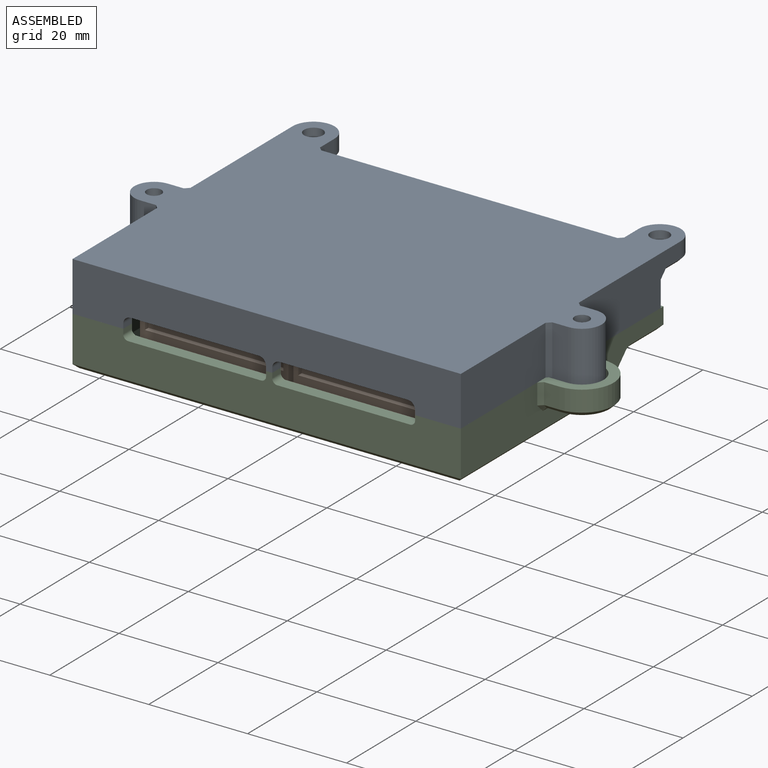
[diagram: assembled view]
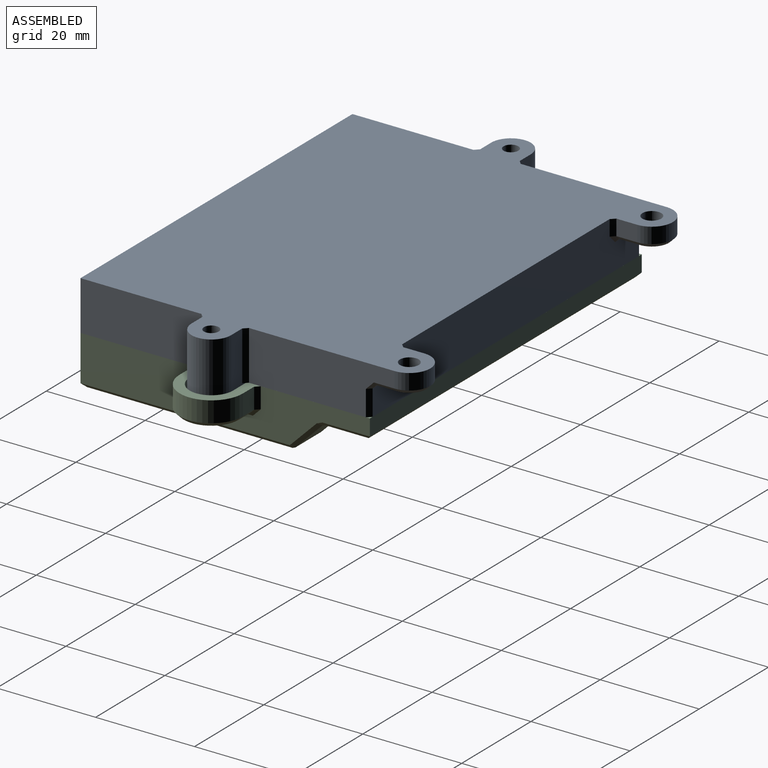
[diagram: assembled view, second angle]
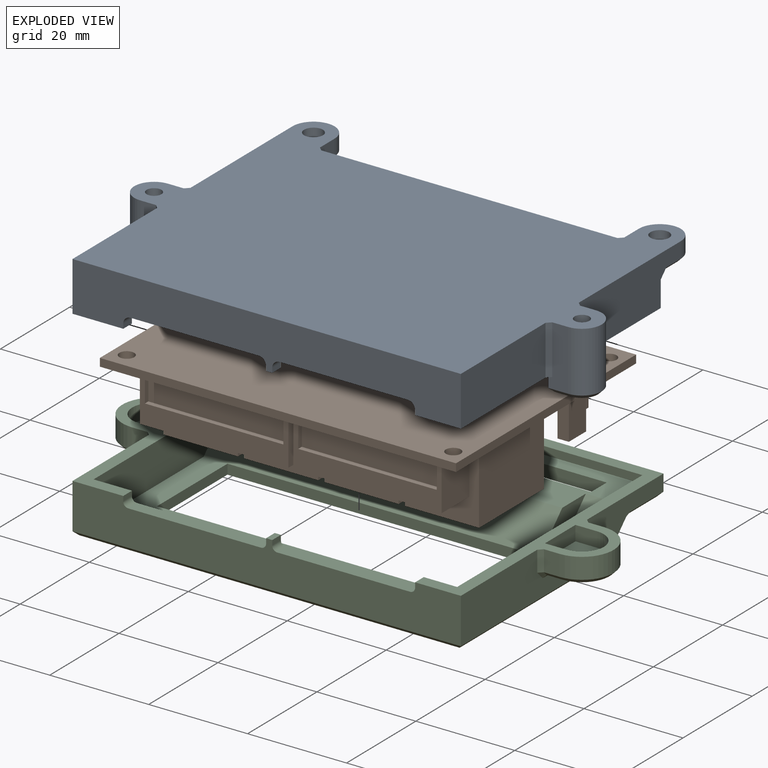
[diagram: exploded view]
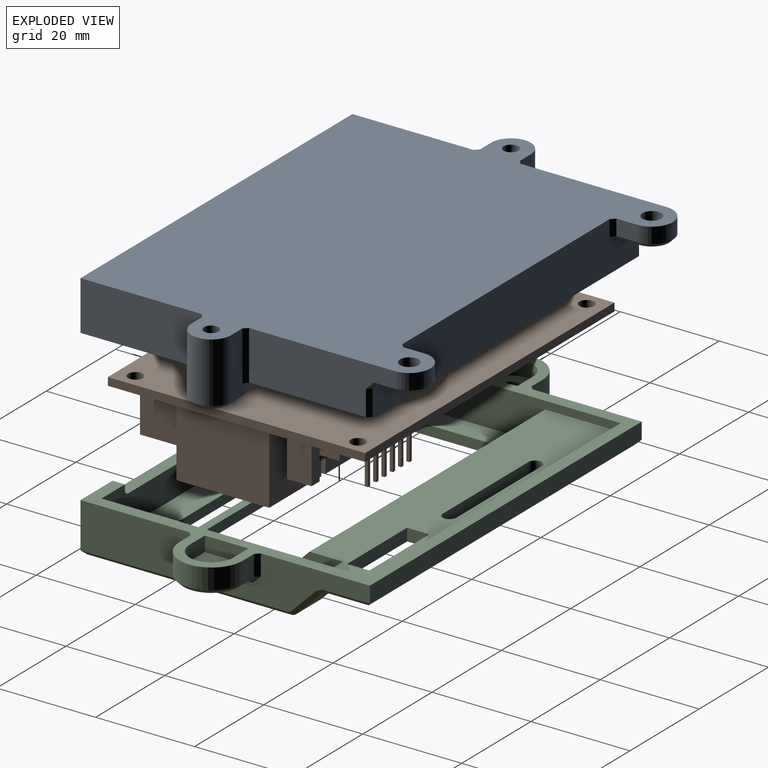
[diagram: exploded view, second angle]
ASSEMBLY  parts=3 mates=3
PART A: 88 faces, bbox 94.5x67.8x13 mm
  f0: plane 29.45x10mm, normal (1,0,0), area 256.3mm2, adj f5,f13,f44,f64,f66,f67,f87
  f1: plane 29.45x10mm, normal (-1,0,0), area 256.3mm2, adj f5,f13,f41,f68,f69,f71,f85
  f2: plane 76.9x10mm, normal (0,1,0), area 690mm2, adj f5,f13,f61,f63,f65,f67,f69,f73
  f3: plane 78.5x10mm, normal (0,-1,0), area 648.3mm2, adj f5,f6,f10,f11,f13,f30,f31,f32
  f4: plane 73.5x8mm, normal (0,1,0), area 451.3mm2, adj f5,f7,f8,f11,f12,f30,f31,f32
  f5: plane 80.1x58.5mm, normal (0,0,-1), area 513.1mm2, adj f0,f1,f2,f3,f4,f6,f7,f8
  f6: plane 24.45x10mm, normal (1,0,0), area 244.5mm2, adj f3,f5,f13,f86
  f7: plane 53.5x8mm, normal (-1,0,0), area 428mm2, adj f4,f5,f9,f12
  f8: plane 53.5x8mm, normal (1,0,0), area 428mm2, adj f4,f5,f9,f12
  f9: plane 73.5x8mm, normal (0,-1,0), area 588mm2, adj f5,f7,f8,f12
  f10: plane 24.45x10mm, normal (-1,0,0), area 244.5mm2, adj f3,f5,f13,f84
  f11: plane 2.5x1.25mm, normal (0,0,-1), area 3.1mm2, adj f3,f4,f34,f39
  f12: plane 73.5x53.5mm, normal (0,0,-1), area 3819.2mm2, adj f4,f7,f8,f9,f15,f19,f23,f27
  f13: plane 94.5x67.75mm, normal (0,0,1), area 4813.4mm2, adj f0,f1,f2,f3,f6,f10,f40,f41
  f14: cylinder r=1.5mm len=3mm, axis (0,0,1), area 28.3mm2, adj f16,f17
  f15: cylinder r=3mm len=6mm, axis (0,0,1), area 56.5mm2, adj f12,f16
  f16: plane 6x6mm, normal (0,0,-1), area 21.2mm2, adj f14,f15
  f17: plane 3x3mm, normal (0,0,-1), area 7.1mm2, adj f14
  f18: cylinder r=1.5mm len=3mm, axis (0,0,1), area 28.3mm2, adj f20,f21
  f19: cylinder r=3mm len=6mm, axis (0,0,1), area 56.5mm2, adj f12,f20
  f20: plane 6x6mm, normal (0,0,-1), area 21.2mm2, adj f18,f19
  f21: plane 3x3mm, normal (0,0,-1), area 7.1mm2, adj f18
  f22: cylinder r=1.5mm len=3mm, axis (0,0,1), area 28.3mm2, adj f24,f25
  f23: cylinder r=3mm len=6mm, axis (0,0,1), area 56.5mm2, adj f12,f24
  f24: plane 6x6mm, normal (0,0,-1), area 21.2mm2, adj f22,f23
  f25: plane 3x3mm, normal (0,0,-1), area 7.1mm2, adj f22
  f26: cylinder r=1.5mm len=3mm, axis (0,0,1), area 28.3mm2, adj f28,f29
  f27: cylinder r=3mm len=6mm, axis (0,0,1), area 56.5mm2, adj f12,f28
  f28: plane 6x6mm, normal (0,0,-1), area 21.2mm2, adj f26,f27
  f29: plane 3x3mm, normal (0,0,-1), area 7.1mm2, adj f26
  f30: cylinder r=1.5mm len=2.5mm, axis (0,-1,0), area 5.9mm2, adj f3,f4,f31,f34
  f31: plane 25.88x2.5mm, normal (0,0,-1), area 64.7mm2, adj f3,f4,f30,f32
  f32: cylinder r=1.5mm len=2.5mm, axis (0,-1,0), area 5.9mm2, adj f3,f4,f31,f33
  f33: plane 2.5x0.9mm, normal (1,0,0), area 2.2mm2, adj f3,f4,f5,f32
  f34: plane 2.5x0.9mm, normal (-1,0,0), area 2.2mm2, adj f3,f4,f11,f30
  f35: plane 2.5x0.9mm, normal (-1,0,0), area 2.2mm2, adj f3,f4,f5,f36
  f36: cylinder r=1.5mm len=2.5mm, axis (0,-1,0), area 5.9mm2, adj f3,f4,f35,f37
  f37: plane 25.88x2.5mm, normal (0,0,-1), area 64.7mm2, adj f3,f4,f36,f38
  f38: cylinder r=1.5mm len=2.5mm, axis (0,-1,0), area 5.9mm2, adj f3,f4,f37,f39
  f39: plane 2.5x0.9mm, normal (1,0,0), area 2.2mm2, adj f3,f4,f11,f38
  f40: plane 4.2x3.2mm, normal (1,0,0), area 13.4mm2, adj f13,f41,f72,f75
  f41: cylinder r=4.25mm len=8.5mm, axis (0,0,1), area 42.7mm2, adj f1,f13,f40,f70
  f42: cylinder r=1.9mm len=4mm, axis (0,0,1), area 47.8mm2, adj f13,f43
  f43: plane 7.65x6.9mm, normal (0,0,-1), area 36.3mm2, adj f42,f68,f70,f72,f73
  f44: cylinder r=4.25mm len=8.5mm, axis (0,0,1), area 42.7mm2, adj f0,f13,f45,f62
  f45: plane 4.2x3.2mm, normal (-1,0,0), area 13.4mm2, adj f13,f44,f60,f61
  f46: cylinder r=1.9mm len=4mm, axis (0,0,1), area 47.8mm2, adj f13,f47
  f47: plane 7.65x6.9mm, normal (0,0,-1), area 36.3mm2, adj f46,f60,f62,f64,f65
  f48: plane 8x2.2mm, normal (-1,0,0), area 17.6mm2, adj f5,f50,f52,f82
  f49: plane 6.4x6.4mm, normal (0,0,-1), area 29.5mm2, adj f53,f80,f81,f82,f83
  f50: plane 12.2x4mm, normal (0,-1,0), area 40.8mm2, adj f5,f13,f48,f51,f83,f86
  f51: cylinder r=4mm len=12.2mm, axis (0,0,1), area 153.3mm2, adj f13,f50,f52,f81
  f52: plane 12.2x4mm, normal (0,1,0), area 40.8mm2, adj f5,f13,f48,f51,f80,f87
  f53: cylinder r=1.5mm len=13mm, axis (0,0,1), area 122.5mm2, adj f13,f49
  f54: plane 8x2.2mm, normal (1,0,0), area 17.6mm2, adj f5,f56,f57,f78
  f55: plane 6.4x6.4mm, normal (0,0,-1), area 29.5mm2, adj f59,f76,f77,f78,f79
  f56: plane 12.2x4mm, normal (0,-1,0), area 40.8mm2, adj f5,f13,f54,f58,f79,f84
  f57: plane 12.2x4mm, normal (0,1,0), area 40.8mm2, adj f5,f13,f54,f58,f76,f85
  f58: cylinder r=4mm len=12.2mm, axis (0,0,1), area 153.3mm2, adj f13,f56,f57,f77
  f59: cylinder r=1.5mm len=13mm, axis (0,0,1), area 122.5mm2, adj f13,f55
  f60: plane 4.2x0.8mm, normal (-0.71,0,-0.71), area 4.8mm2, adj f45,f47,f62,f63
  f61: plane 3.2x0.8mm, normal (-0.71,0.71,0), area 3.6mm2, adj f2,f13,f45,f63
  f62: cone r=3.45mm half-angle=45deg, axis (0,0,1), area 13.7mm2, adj f44,f47,f60,f64
  f63: plane 1.6x1.6mm, normal (-0.58,0.58,-0.58), area 1.7mm2, adj f2,f60,f61,f65
  f64: plane 4.2x0.8mm, normal (0.71,0,-0.71), area 4.8mm2, adj f0,f47,f62,f66
  f65: plane 6.9x0.8mm, normal (0,0.71,-0.71), area 7.8mm2, adj f2,f47,f63,f66
  f66: plane 1.6x1.6mm, normal (0.58,0.58,-0.58), area 1.7mm2, adj f0,f64,f65,f67
  f67: plane 5.2x0.8mm, normal (0.71,0.71,0), area 5.9mm2, adj f0,f2,f5,f66
  f68: plane 4.2x0.8mm, normal (-0.71,0,-0.71), area 4.8mm2, adj f1,f43,f70,f71
  f69: plane 5.2x0.8mm, normal (-0.71,0.71,0), area 5.9mm2, adj f1,f2,f5,f71
  f70: cone r=4.25mm half-angle=45deg, axis (0,0,1), area 13.7mm2, adj f41,f43,f68,f72
  f71: plane 1.6x1.6mm, normal (-0.58,0.58,-0.58), area 1.7mm2, adj f1,f68,f69,f73
  f72: plane 4.2x0.8mm, normal (0.71,0,-0.71), area 4.8mm2, adj f40,f43,f70,f74
  f73: plane 6.9x0.8mm, normal (0,0.71,-0.71), area 7.8mm2, adj f2,f43,f71,f74
  f74: plane 1.6x1.6mm, normal (0.58,0.58,-0.58), area 1.7mm2, adj f2,f72,f73,f75
  f75: plane 3.2x0.8mm, normal (0.71,0.71,0), area 3.6mm2, adj f2,f13,f40,f74
  f76: plane 4x0.8mm, normal (0,0.71,-0.71), area 4.1mm2, adj f55,f57,f77,f78
  f77: cone r=4mm half-angle=45deg, axis (0,0,1), area 12.8mm2, adj f55,f58,f76,f79
  f78: plane 8x0.8mm, normal (0.71,0,-0.71), area 8.1mm2, adj f54,f55,f76,f79
  f79: plane 4x0.8mm, normal (0,-0.71,-0.71), area 4.1mm2, adj f55,f56,f77,f78
  f80: plane 4x0.8mm, normal (0,0.71,-0.71), area 4.1mm2, adj f49,f52,f81,f82
  f81: cone r=3.2mm half-angle=45deg, axis (0,0,1), area 12.8mm2, adj f49,f51,f80,f83
  f82: plane 8x0.8mm, normal (-0.71,0,-0.71), area 8.1mm2, adj f48,f49,f80,f83
  f83: plane 4x0.8mm, normal (0,-0.71,-0.71), area 4.1mm2, adj f49,f50,f81,f82
  f84: plane 10x0.8mm, normal (-0.71,-0.71,0), area 11.3mm2, adj f5,f10,f13,f56
  f85: plane 10x0.8mm, normal (-0.71,0.71,0), area 11.3mm2, adj f1,f5,f13,f57
  f86: plane 10x0.8mm, normal (0.71,-0.71,0), area 11.3mm2, adj f5,f6,f13,f50
  f87: plane 10x0.8mm, normal (0.71,0.71,0), area 11.3mm2, adj f0,f5,f13,f52
PART B: 154 faces, bbox 72x52x17.1 mm
  f0: plane 52x1.6mm, normal (-1,0,0), area 83.2mm2, adj f1,f3,f4,f5
  f1: plane 72x1.6mm, normal (0,-1,0), area 115.2mm2, adj f0,f2,f4,f5
  f2: plane 52x1.6mm, normal (1,0,0), area 83.2mm2, adj f1,f3,f4,f5
  f3: plane 72x1.6mm, normal (0,1,0), area 115.2mm2, adj f0,f2,f4,f5
  f4: plane 72x52mm, normal (0,0,1), area 3715.7mm2, adj f0,f1,f2,f3,f6,f7,f8,f9
  f5: plane 72x52mm, normal (0,0,-1), area 1934mm2, adj f0,f1,f2,f3,f6,f7,f8,f9
  f6: cylinder r=1.5mm len=3mm, axis (0,0,-1), area 15.1mm2, adj f4,f5
  f7: cylinder r=1.5mm len=3mm, axis (0,0,-1), area 15.1mm2, adj f4,f5
  f8: cylinder r=1.5mm len=3mm, axis (0,0,-1), area 15.1mm2, adj f4,f5
  f9: cylinder r=1.5mm len=3mm, axis (0,0,-1), area 15.1mm2, adj f4,f5
  f10: plane 30x10mm, normal (0,-1,0), area 160mm2, adj f5,f11,f13,f14,f27,f28,f29,f30
  f11: plane 10x8mm, normal (-1,0,0), area 80mm2, adj f5,f10,f12,f14
  f12: plane 30x10mm, normal (0,1,0), area 300mm2, adj f5,f11,f13,f14
  f13: plane 10x8mm, normal (1,0,0), area 80mm2, adj f5,f10,f12,f14
  f14: plane 30x8mm, normal (0,0,-1), area 182.3mm2, adj f10,f11,f12,f13,f15,f17,f19,f21
  f15: cylinder r=1.75mm len=3.5mm, axis (0,0,-1), area 22mm2, adj f14,f16
  f16: plane 3.5x3.5mm, normal (0,0,-1), area 9.6mm2, adj f15
  f17: cylinder r=1.75mm len=3.5mm, axis (0,0,-1), area 22mm2, adj f14,f18
  f18: plane 3.5x3.5mm, normal (0,0,-1), area 9.6mm2, adj f17
  f19: cylinder r=1.75mm len=3.5mm, axis (0,0,-1), area 22mm2, adj f14,f20
  f20: plane 3.5x3.5mm, normal (0,0,-1), area 9.6mm2, adj f19
  f21: cylinder r=1.75mm len=3.5mm, axis (0,0,-1), area 22mm2, adj f14,f22
  f22: plane 3.5x3.5mm, normal (0,0,-1), area 9.6mm2, adj f21
  f23: cylinder r=1.75mm len=3.5mm, axis (0,0,-1), area 22mm2, adj f14,f24
  f24: plane 3.5x3.5mm, normal (0,0,-1), area 9.6mm2, adj f23
  f25: cylinder r=1.75mm len=3.5mm, axis (0,0,-1), area 22mm2, adj f14,f26
  f26: plane 3.5x3.5mm, normal (0,0,-1), area 9.6mm2, adj f25
  f27: plane 28x1mm, normal (0,0,1), area 28mm2, adj f10,f28,f30,f31
  f28: plane 5x1mm, normal (-1,0,0), area 5mm2, adj f10,f27,f29,f31
  f29: plane 28x1mm, normal (0,0,-1), area 28mm2, adj f10,f28,f30,f31
  f30: plane 5x1mm, normal (1,0,0), area 5mm2, adj f10,f27,f29,f31
  f31: plane 28x5mm, normal (0,-1,0), area 140mm2, adj f27,f28,f29,f30
  f32: plane 18.75x15.5mm, normal (1,0,0), area 290.6mm2, adj f5,f33,f35,f36
  f33: plane 15.5x15mm, normal (0,-1,0), area 232.5mm2, adj f5,f32,f34,f36
  f34: plane 18.75x15.5mm, normal (-1,0,0), area 290.6mm2, adj f5,f33,f35,f36
  f35: plane 15.5x15mm, normal (0,1,0), area 232.5mm2, adj f5,f32,f34,f36
  f36: plane 18.75x15mm, normal (0,0,-1), area 281.2mm2, adj f32,f33,f34,f35
  f37: plane 30x10mm, normal (0,-1,0), area 160mm2, adj f5,f38,f40,f41,f54,f55,f56,f57
  f38: plane 10x8mm, normal (-1,0,0), area 80mm2, adj f5,f37,f39,f41
  f39: plane 30x10mm, normal (0,1,0), area 300mm2, adj f5,f38,f40,f41
  f40: plane 10x8mm, normal (1,0,0), area 80mm2, adj f5,f37,f39,f41
  f41: plane 30x8mm, normal (0,0,-1), area 182.3mm2, adj f37,f38,f39,f40,f42,f44,f46,f48
  f42: cylinder r=1.75mm len=3.5mm, axis (0,0,-1), area 22mm2, adj f41,f43
  f43: plane 3.5x3.5mm, normal (0,0,-1), area 9.6mm2, adj f42
  f44: cylinder r=1.75mm len=3.5mm, axis (0,0,-1), area 22mm2, adj f41,f45
  f45: plane 3.5x3.5mm, normal (0,0,-1), area 9.6mm2, adj f44
  f46: cylinder r=1.75mm len=3.5mm, axis (0,0,-1), area 22mm2, adj f41,f47
  f47: plane 3.5x3.5mm, normal (0,0,-1), area 9.6mm2, adj f46
  f48: cylinder r=1.75mm len=3.5mm, axis (0,0,-1), area 22mm2, adj f41,f49
  f49: plane 3.5x3.5mm, normal (0,0,-1), area 9.6mm2, adj f48
  f50: cylinder r=1.75mm len=3.5mm, axis (0,0,-1), area 22mm2, adj f41,f51
  f51: plane 3.5x3.5mm, normal (0,0,-1), area 9.6mm2, adj f50
  f52: cylinder r=1.75mm len=3.5mm, axis (0,0,-1), area 22mm2, adj f41,f53
  f53: plane 3.5x3.5mm, normal (0,0,-1), area 9.6mm2, adj f52
  f54: plane 28x1mm, normal (0,0,1), area 28mm2, adj f37,f55,f57,f58
  f55: plane 5x1mm, normal (-1,0,0), area 5mm2, adj f37,f54,f56,f58
  f56: plane 28x1mm, normal (0,0,-1), area 28mm2, adj f37,f55,f57,f58
  f57: plane 5x1mm, normal (1,0,0), area 5mm2, adj f37,f54,f56,f58
  f58: plane 28x5mm, normal (0,-1,0), area 140mm2, adj f54,f55,f56,f57
  f59: plane 15.5x15mm, normal (0,1,0), area 232.5mm2, adj f5,f60,f62,f63
  f60: plane 18.75x15.5mm, normal (1,0,0), area 290.6mm2, adj f5,f59,f61,f63
  f61: plane 15.5x15mm, normal (0,-1,0), area 232.5mm2, adj f5,f60,f62,f63
  f62: plane 18.75x15.5mm, normal (-1,0,0), area 290.6mm2, adj f5,f59,f61,f63
  f63: plane 18.75x15mm, normal (0,0,-1), area 281.2mm2, adj f59,f60,f61,f62
  f64: plane 15.5x15mm, normal (0,1,0), area 232.5mm2, adj f5,f65,f67,f68
  f65: plane 18.75x15.5mm, normal (1,0,0), area 290.6mm2, adj f5,f64,f66,f68
  f66: plane 15.5x15mm, normal (0,-1,0), area 232.5mm2, adj f5,f65,f67,f68
  f67: plane 18.75x15.5mm, normal (-1,0,0), area 290.6mm2, adj f5,f64,f66,f68
  f68: plane 18.75x15mm, normal (0,0,-1), area 281.2mm2, adj f64,f65,f66,f67
  f69: plane 15.5x15mm, normal (0,1,0), area 232.5mm2, adj f5,f70,f72,f73
  f70: plane 18.75x15.5mm, normal (1,0,0), area 290.6mm2, adj f5,f69,f71,f73
  f71: plane 15.5x15mm, normal (0,-1,0), area 232.5mm2, adj f5,f70,f72,f73
  f72: plane 18.75x15.5mm, normal (-1,0,0), area 290.6mm2, adj f5,f69,f71,f73
  f73: plane 18.75x15mm, normal (0,0,-1), area 281.2mm2, adj f69,f70,f71,f72
  f74: plane 4.7x4.3mm, normal (0,1,0), area 20.2mm2, adj f5,f75,f77,f78
  f75: plane 6.2x4.3mm, normal (1,0,0), area 26.7mm2, adj f5,f74,f76,f78
  f76: plane 4.7x4.3mm, normal (0,-1,0), area 20.2mm2, adj f5,f75,f77,f78
  f77: plane 6.2x4.3mm, normal (-1,0,0), area 26.7mm2, adj f5,f74,f76,f78
  f78: plane 6.2x4.7mm, normal (0,0,-1), area 29.1mm2, adj f74,f75,f76,f77
  f79: plane 4.7x4.3mm, normal (0,1,0), area 20.2mm2, adj f5,f80,f82,f83
  f80: plane 6.2x4.3mm, normal (1,0,0), area 26.7mm2, adj f5,f79,f81,f83
  f81: plane 4.7x4.3mm, normal (0,-1,0), area 20.2mm2, adj f5,f80,f82,f83
  f82: plane 6.2x4.3mm, normal (-1,0,0), area 26.7mm2, adj f5,f79,f81,f83
  f83: plane 6.2x4.7mm, normal (0,0,-1), area 29.1mm2, adj f79,f80,f81,f82
  f84: plane 4.7x4.3mm, normal (0,1,0), area 20.2mm2, adj f5,f85,f87,f88
  f85: plane 6.2x4.3mm, normal (1,0,0), area 26.7mm2, adj f5,f84,f86,f88
  f86: plane 4.7x4.3mm, normal (0,-1,0), area 20.2mm2, adj f5,f85,f87,f88
  f87: plane 6.2x4.3mm, normal (-1,0,0), area 26.7mm2, adj f5,f84,f86,f88
  f88: plane 6.2x4.7mm, normal (0,0,-1), area 29.1mm2, adj f84,f85,f86,f87
  f89: plane 4.7x4.3mm, normal (0,1,0), area 20.2mm2, adj f5,f90,f92,f93
  f90: plane 6.2x4.3mm, normal (1,0,0), area 26.7mm2, adj f5,f89,f91,f93
  f91: plane 4.7x4.3mm, normal (0,-1,0), area 20.2mm2, adj f5,f90,f92,f93
  f92: plane 6.2x4.3mm, normal (-1,0,0), area 26.7mm2, adj f5,f89,f91,f93
  f93: plane 6.2x4.7mm, normal (0,0,-1), area 29.1mm2, adj f89,f90,f91,f92
  f94: plane 8.3x2.3mm, normal (0,1,0), area 19.1mm2, adj f5,f95,f97,f98
  f95: plane 8.3x5mm, normal (1,0,0), area 41.5mm2, adj f5,f94,f96,f98
  f96: plane 8.3x2.3mm, normal (0,-1,0), area 19.1mm2, adj f5,f95,f97,f98
  f97: plane 8.3x5mm, normal (-1,0,0), area 41.5mm2, adj f5,f94,f96,f98
  f98: plane 5x2.3mm, normal (0,0,-1), area 11.5mm2, adj f94,f95,f96,f97
  f99: plane 15.3x2.5mm, normal (0,0,-1), area 35.8mm2, adj f100,f101,f102,f103,f104,f105,f106,f107
  f100: plane 15.3x2.6mm, normal (0,1,0), area 39.8mm2, adj f5,f99,f101,f103
  f101: plane 2.6x2.5mm, normal (1,0,0), area 6.5mm2, adj f5,f99,f100,f102
  f102: plane 15.3x2.6mm, normal (0,-1,0), area 39.8mm2, adj f5,f99,f101,f103
  f103: plane 2.6x2.5mm, normal (-1,0,0), area 6.5mm2, adj f5,f99,f100,f102
  f104: plane 5.7x0.64mm, normal (0,-1,0), area 3.6mm2, adj f99,f105,f107,f108
  f105: plane 5.7x0.64mm, normal (-1,0,0), area 3.6mm2, adj f99,f104,f106,f108
  f106: plane 5.7x0.64mm, normal (0,1,0), area 3.6mm2, adj f99,f105,f107,f108
  f107: plane 5.7x0.64mm, normal (1,0,0), area 3.6mm2, adj f99,f104,f106,f108
  f108: plane 0.64x0.64mm, normal (0,0,-1), area 0.4mm2, adj f104,f105,f106,f107
  f109: plane 5.7x0.64mm, normal (0,-1,0), area 3.6mm2, adj f99,f110,f112,f113
  f110: plane 5.7x0.64mm, normal (-1,0,0), area 3.6mm2, adj f99,f109,f111,f113
  f111: plane 5.7x0.64mm, normal (0,1,0), area 3.6mm2, adj f99,f110,f112,f113
  f112: plane 5.7x0.64mm, normal (1,0,0), area 3.6mm2, adj f99,f109,f111,f113
  f113: plane 0.64x0.64mm, normal (0,0,-1), area 0.4mm2, adj f109,f110,f111,f112
  f114: plane 5.7x0.64mm, normal (0,-1,0), area 3.6mm2, adj f99,f115,f117,f118
  f115: plane 5.7x0.64mm, normal (-1,0,0), area 3.6mm2, adj f99,f114,f116,f118
  f116: plane 5.7x0.64mm, normal (0,1,0), area 3.6mm2, adj f99,f115,f117,f118
  f117: plane 5.7x0.64mm, normal (1,0,0), area 3.6mm2, adj f99,f114,f116,f118
  f118: plane 0.64x0.64mm, normal (0,0,-1), area 0.4mm2, adj f114,f115,f116,f117
  f119: plane 5.7x0.64mm, normal (0,-1,0), area 3.6mm2, adj f99,f120,f122,f123
  f120: plane 5.7x0.64mm, normal (-1,0,0), area 3.6mm2, adj f99,f119,f121,f123
  f121: plane 5.7x0.64mm, normal (0,1,0), area 3.6mm2, adj f99,f120,f122,f123
  f122: plane 5.7x0.64mm, normal (1,0,0), area 3.6mm2, adj f99,f119,f121,f123
  f123: plane 0.64x0.64mm, normal (0,0,-1), area 0.4mm2, adj f119,f120,f121,f122
  f124: plane 5.7x0.64mm, normal (0,-1,0), area 3.6mm2, adj f99,f125,f127,f128
  f125: plane 5.7x0.64mm, normal (-1,0,0), area 3.6mm2, adj f99,f124,f126,f128
  f126: plane 5.7x0.64mm, normal (0,1,0), area 3.6mm2, adj f99,f125,f127,f128
  f127: plane 5.7x0.64mm, normal (1,0,0), area 3.6mm2, adj f99,f124,f126,f128
  f128: plane 0.64x0.64mm, normal (0,0,-1), area 0.4mm2, adj f124,f125,f126,f127
  f129: plane 5.7x0.64mm, normal (0,-1,0), area 3.6mm2, adj f99,f130,f132,f133
  f130: plane 5.7x0.64mm, normal (-1,0,0), area 3.6mm2, adj f99,f129,f131,f133
  f131: plane 5.7x0.64mm, normal (0,1,0), area 3.6mm2, adj f99,f130,f132,f133
  f132: plane 5.7x0.64mm, normal (1,0,0), area 3.6mm2, adj f99,f129,f131,f133
  f133: plane 0.64x0.64mm, normal (0,0,-1), area 0.4mm2, adj f129,f130,f131,f132
  f134: plane 2x0.7mm, normal (0,1,0), area 1.4mm2, adj f5,f135,f137,f138
  f135: plane 1.3x0.7mm, normal (1,0,0), area 0.9mm2, adj f5,f134,f136,f138
  f136: plane 2x0.7mm, normal (0,-1,0), area 1.4mm2, adj f5,f135,f137,f138
  f137: plane 1.3x0.7mm, normal (-1,0,0), area 0.9mm2, adj f5,f134,f136,f138
  f138: plane 2x1.3mm, normal (0,0,-1), area 2.6mm2, adj f134,f135,f136,f137
  f139: plane 2x0.7mm, normal (0,1,0), area 1.4mm2, adj f5,f140,f142,f143
  f140: plane 1.3x0.7mm, normal (1,0,0), area 0.9mm2, adj f5,f139,f141,f143
  f141: plane 2x0.7mm, normal (0,-1,0), area 1.4mm2, adj f5,f140,f142,f143
  f142: plane 1.3x0.7mm, normal (-1,0,0), area 0.9mm2, adj f5,f139,f141,f143
  f143: plane 2x1.3mm, normal (0,0,-1), area 2.6mm2, adj f139,f140,f141,f142
  f144: plane 2x0.7mm, normal (0,1,0), area 1.4mm2, adj f5,f145,f147,f148
  f145: plane 1.3x0.7mm, normal (1,0,0), area 0.9mm2, adj f5,f144,f146,f148
  f146: plane 2x0.7mm, normal (0,-1,0), area 1.4mm2, adj f5,f145,f147,f148
  f147: plane 1.3x0.7mm, normal (-1,0,0), area 0.9mm2, adj f5,f144,f146,f148
  f148: plane 2x1.3mm, normal (0,0,-1), area 2.6mm2, adj f144,f145,f146,f147
  f149: plane 2x0.7mm, normal (0,1,0), area 1.4mm2, adj f5,f150,f152,f153
  f150: plane 1.3x0.7mm, normal (1,0,0), area 0.9mm2, adj f5,f149,f151,f153
  f151: plane 2x0.7mm, normal (0,-1,0), area 1.4mm2, adj f5,f150,f152,f153
  f152: plane 1.3x0.7mm, normal (-1,0,0), area 0.9mm2, adj f5,f149,f151,f153
  f153: plane 2x1.3mm, normal (0,0,-1), area 2.6mm2, adj f149,f150,f151,f152
PART C: 107 faces, bbox 99.3x58.5x10 mm
  f0: plane 58.5x9.2mm, normal (-1,0,0), area 339.1mm2, adj f2,f6,f11,f70,f71,f73,f74,f76
  f1: plane 58.5x9.2mm, normal (1,0,0), area 379.3mm2, adj f2,f6,f11,f79,f81,f83,f84,f85
  f2: plane 99.3x58.5mm, normal (0,0,1), area 606.6mm2, adj f0,f1,f6,f10,f11,f12,f13,f14
  f3: plane 73.5x15.3mm, normal (0,0,1), area 935.4mm2, adj f5,f12,f13,f14,f39,f40,f41,f42
  f4: plane 76.9x15.63mm, normal (0,0,-1), area 995.3mm2, adj f38,f39,f40,f41,f42,f46,f47,f48
  f5: plane 68x6.4mm, normal (0,-0.71,0.71), area 615.5mm2, adj f3,f7,f12,f16,f44
  f6: plane 78.5x3.3mm, normal (0,1,0), area 259.1mm2, adj f0,f1,f2,f88
  f7: plane 73.5x38.61mm, normal (0,0,1), area 795.4mm2, adj f5,f10,f12,f13,f15,f16,f17,f18
  f8: plane 76.9x41.52mm, normal (0,0,-1), area 1141.6mm2, adj f15,f16,f17,f18,f29,f30,f31,f32
  f9: plane 2.5x1.25mm, normal (0,0,1), area 3.1mm2, adj f10,f11,f19,f22
  f10: plane 73.5x8mm, normal (0,1,0), area 473.4mm2, adj f2,f7,f9,f12,f13,f19,f20,f21
  f11: plane 78.5x9.2mm, normal (0,-1,0), area 607.6mm2, adj f0,f1,f2,f9,f19,f20,f21,f22
  f12: plane 53.5x8mm, normal (1,0,0), area 309.6mm2, adj f2,f3,f5,f7,f10,f14
  f13: plane 53.5x8mm, normal (-1,0,0), area 353.2mm2, adj f2,f3,f7,f10,f14,f45
  f14: plane 73.5x1.6mm, normal (0,-1,0), area 117.6mm2, adj f2,f3,f12,f13
  f15: plane 20.35x2mm, normal (-1,0,0), area 40.7mm2, adj f7,f8,f16,f17
  f16: plane 65.35x2mm, normal (0,-1,0), area 130.7mm2, adj f5,f7,f8,f15,f18
  f17: plane 65.35x2mm, normal (0,1,0), area 130.7mm2, adj f7,f8,f15,f18
  f18: plane 20.35x2mm, normal (1,0,0), area 40.7mm2, adj f7,f8,f16,f17
  f19: plane 2.5x1mm, normal (-1,0,0), area 2.5mm2, adj f9,f10,f11,f26
  f20: plane 2.5x1mm, normal (1,0,0), area 2.5mm2, adj f2,f10,f11,f25
  f21: plane 26.88x2.5mm, normal (0,0,1), area 67.2mm2, adj f10,f11,f25,f26
  f22: plane 2.5x1mm, normal (1,0,0), area 2.5mm2, adj f9,f10,f11,f27
  f23: plane 2.5x1mm, normal (-1,0,0), area 2.5mm2, adj f2,f10,f11,f28
  f24: plane 26.88x2.5mm, normal (0,0,1), area 67.2mm2, adj f10,f11,f27,f28
  f25: cylinder r=1mm len=2.5mm, axis (0,-1,0), area 3.9mm2, adj f10,f11,f20,f21
  f26: cylinder r=1mm len=2.5mm, axis (0,1,0), area 3.9mm2, adj f10,f11,f19,f21
  f27: cylinder r=1mm len=2.5mm, axis (0,-1,0), area 3.9mm2, adj f10,f11,f22,f24
  f28: cylinder r=1mm len=2.5mm, axis (0,1,0), area 3.9mm2, adj f10,f11,f23,f24
  f29: plane 27.83x2mm, normal (0,1,0), area 55.6mm2, adj f7,f8,f30,f32
  f30: cylinder r=2mm len=4mm, axis (0,0,-1), area 12.6mm2, adj f7,f8,f29,f31
  f31: plane 27.83x2mm, normal (0,-1,0), area 55.6mm2, adj f7,f8,f30,f32
  f32: cylinder r=2mm len=4mm, axis (0,0,-1), area 12.6mm2, adj f7,f8,f29,f31
  f33: plane 28.28x2mm, normal (0,-1,0), area 56.5mm2, adj f7,f8,f34,f36
  f34: cylinder r=2mm len=4mm, axis (0,0,-1), area 12.6mm2, adj f7,f8,f33,f35
  f35: plane 28.28x2mm, normal (0,1,0), area 56.5mm2, adj f7,f8,f34,f36
  f36: cylinder r=2mm len=4mm, axis (0,0,-1), area 12.6mm2, adj f7,f8,f33,f35
  f37: plane 67.9x5.43mm, normal (0,0.71,-0.71), area 521.5mm2, adj f95,f98,f102,f103
  f38: plane 9.65x5.1mm, normal (-1,0,0), area 23.2mm2, adj f4,f101,f102,f106
  f39: plane 4.73x2.73mm, normal (-1,0,0), area 11.3mm2, adj f3,f4,f40,f42,f43,f87
  f40: plane 17.3x2.5mm, normal (0,1,0), area 43.3mm2, adj f3,f4,f39,f41,f43
  f41: plane 4.5x2.5mm, normal (1,0,0), area 11.3mm2, adj f3,f4,f40,f42
  f42: plane 17.3x2.5mm, normal (0,-1,0), area 43.3mm2, adj f3,f4,f39,f41
  f43: plane 7.4x5.67mm, normal (0,0.71,-0.71), area 57mm2, adj f39,f40,f87,f93,f100,f101
  f44: plane 13.21x6.4mm, normal (1,0,0), area 43.6mm2, adj f3,f5,f7,f45
  f45: plane 6.4x6.4mm, normal (0,-0.71,0.71), area 49.8mm2, adj f3,f7,f13,f44
  f46: cylinder r=1.38mm len=2.75mm, axis (0,0,-1), area 10.8mm2, adj f3,f4,f47,f49
  f47: plane 24.7x2.5mm, normal (0,-1,0), area 61.8mm2, adj f3,f4,f46,f48
  f48: cylinder r=1.38mm len=2.75mm, axis (0,0,-1), area 10.8mm2, adj f3,f4,f47,f49
  f49: plane 24.7x2.5mm, normal (0,1,0), area 61.8mm2, adj f3,f4,f46,f48
  f50: plane 4.4x3mm, normal (0,-1,0), area 13.2mm2, adj f2,f51,f53,f54
  f51: plane 8.8x3mm, normal (1,0,0), area 26.4mm2, adj f2,f50,f52,f53
  f52: plane 4.4x3mm, normal (0,1,0), area 13.2mm2, adj f2,f51,f53,f54
  f53: plane 8.8x8.8mm, normal (0,0,1), area 56.6mm2, adj f50,f51,f52,f54,f58
  f54: cylinder r=4.4mm len=8.8mm, axis (0,0,1), area 41.5mm2, adj f2,f50,f52,f53
  f55: plane 4.2x3.2mm, normal (0,1,0), area 13.4mm2, adj f2,f57,f78,f79
  f56: plane 4.2x3.2mm, normal (0,-1,0), area 13.4mm2, adj f2,f57,f82,f85
  f57: cylinder r=6.4mm len=12.8mm, axis (0,0,1), area 84.4mm2, adj f2,f55,f56,f80
  f58: cylinder r=2mm len=4mm, axis (0,0,1), area 25.1mm2, adj f53,f59
  f59: plane 11.2x8.8mm, normal (0,0,-1), area 72.5mm2, adj f58,f78,f80,f82,f83
  f60: plane 4.4x3mm, normal (0,-1,0), area 13.2mm2, adj f2,f62,f63,f66
  f61: plane 4.4x3mm, normal (0,1,0), area 13.2mm2, adj f2,f62,f63,f66
  f62: plane 8.8x3mm, normal (-1,0,0), area 26.4mm2, adj f2,f60,f61,f63
  f63: plane 8.8x8.8mm, normal (0,0,1), area 56.6mm2, adj f60,f61,f62,f66,f68
  f64: plane 4.2x3.2mm, normal (0,1,0), area 13.4mm2, adj f2,f67,f70,f72
  f65: plane 4.2x3.2mm, normal (0,-1,0), area 13.4mm2, adj f2,f67,f73,f77
  f66: cylinder r=4.4mm len=8.8mm, axis (0,0,1), area 41.5mm2, adj f2,f60,f61,f63
  f67: cylinder r=6.4mm len=12.8mm, axis (0,0,1), area 84.4mm2, adj f2,f64,f65,f75
  f68: cylinder r=2mm len=4mm, axis (0,0,1), area 25.1mm2, adj f63,f69
  f69: plane 11.2x8.8mm, normal (0,0,-1), area 72.5mm2, adj f68,f72,f74,f75,f77
  f70: plane 4.2x0.8mm, normal (-0.71,0.71,0), area 4.8mm2, adj f0,f2,f64,f71
  f71: plane 1.6x1.6mm, normal (-0.58,0.58,-0.58), area 1.7mm2, adj f0,f70,f72,f74
  f72: plane 3.2x0.8mm, normal (0,0.71,-0.71), area 3.6mm2, adj f64,f69,f71,f75
  f73: plane 4.2x0.8mm, normal (-0.71,-0.71,0), area 4.8mm2, adj f0,f2,f65,f76
  f74: plane 11.2x0.8mm, normal (-0.71,0,-0.71), area 12.7mm2, adj f0,f69,f71,f76
  f75: cone r=5.6mm half-angle=45deg, axis (0,0,1), area 21.3mm2, adj f67,f69,f72,f77
  f76: plane 1.6x1.6mm, normal (-0.58,-0.58,-0.58), area 1.7mm2, adj f0,f73,f74,f77
  f77: plane 3.2x0.8mm, normal (0,-0.71,-0.71), area 3.6mm2, adj f65,f69,f75,f76
  f78: plane 3.2x0.8mm, normal (0,0.71,-0.71), area 3.6mm2, adj f55,f59,f80,f81
  f79: plane 4.2x0.8mm, normal (0.71,0.71,0), area 4.8mm2, adj f1,f2,f55,f81
  f80: cone r=6.4mm half-angle=45deg, axis (0,0,1), area 21.3mm2, adj f57,f59,f78,f82
  f81: plane 1.6x1.6mm, normal (0.58,0.58,-0.58), area 1.7mm2, adj f1,f78,f79,f83
  f82: plane 3.2x0.8mm, normal (0,-0.71,-0.71), area 3.6mm2, adj f56,f59,f80,f84
  f83: plane 11.2x0.8mm, normal (0.71,0,-0.71), area 12.7mm2, adj f1,f59,f81,f84
  f84: plane 1.6x1.6mm, normal (0.58,-0.58,-0.58), area 1.7mm2, adj f1,f82,f83,f85
  f85: plane 4.2x0.8mm, normal (0.71,-0.71,0), area 4.8mm2, adj f1,f2,f56,f84
  f86: plane 9.62x0.8mm, normal (0.71,0,-0.71), area 10.4mm2, adj f1,f4,f88,f89
  f87: plane 6.85x0.57mm, normal (0,0.38,-0.92), area 4.2mm2, adj f4,f39,f43,f89
  f88: plane 78.5x0.8mm, normal (0,0.71,-0.71), area 87.9mm2, adj f4,f6,f86,f90
  f89: plane 1.13x1.03mm, normal (0.68,0.28,-0.68), area 1mm2, adj f1,f86,f87,f93
  f90: plane 16.43x0.8mm, normal (-0.71,0,-0.71), area 18.1mm2, adj f0,f4,f88,f94
  f91: plane 78.5x0.8mm, normal (0,-0.71,-0.71), area 87.9mm2, adj f8,f11,f92,f96
  f92: plane 42.32x0.8mm, normal (0.71,0,-0.71), area 47.4mm2, adj f1,f8,f91,f97
  f93: plane 6x6mm, normal (0.71,0.5,-0.5), area 8.7mm2, adj f1,f43,f89,f97
  f94: plane 1.13x1.03mm, normal (-0.68,0.28,-0.68), area 1mm2, adj f0,f90,f95,f98
  f95: plane 6x6mm, normal (-0.71,0.5,-0.5), area 8.7mm2, adj f0,f37,f94,f99
  f96: plane 35.5x0.8mm, normal (-0.71,0,-0.71), area 39.7mm2, adj f0,f8,f91,f99
  f97: plane 0.8x0.8mm, normal (0.68,0.28,-0.68), area 0.3mm2, adj f92,f93,f100
  f98: plane 68.13x0.57mm, normal (0,0.38,-0.92), area 41.6mm2, adj f4,f37,f94,f102
  f99: plane 0.8x0.8mm, normal (-0.68,0.28,-0.68), area 0.3mm2, adj f95,f96,f103
  f100: plane 7.4x0.57mm, normal (0,0.38,-0.92), area 4.5mm2, adj f8,f43,f97,f104
  f101: plane 6.23x5.67mm, normal (-0.71,0.5,-0.5), area 8.6mm2, adj f4,f38,f43,f104
  f102: plane 6.8x5.67mm, normal (-0.71,0.5,-0.5), area 8.6mm2, adj f4,f37,f38,f98,f105
  f103: plane 67.9x0.57mm, normal (0,0.38,-0.92), area 41.6mm2, adj f8,f37,f99,f105
  f104: plane 0.8x0.8mm, normal (-0.68,0.28,-0.68), area 0.3mm2, adj f100,f101,f106
  f105: bspline ~2.26x1.6mm, area 1.7mm2, adj f8,f102,f103,f106
  f106: plane 4.55x0.8mm, normal (-0.71,0,-0.71), area 5.1mm2, adj f8,f38,f104,f105
PLACE A rot(axis=(-0.29,0.95,-0.05),0deg) t=(17.26,-33.05,14.68)mm fixed
PLACE B rot(axis=(-0.29,0.95,-0.05),0deg) t=(17.26,-33.05,14.68)mm
PLACE C rot(axis=(-0.29,0.95,-0.05),0deg) t=(17.26,-33.05,33.05)mm
MATE fastened C.f2 <-> A.f5  axis (0,0,1) through (92.51,-36.3,11.28)mm
MATE planar A.f26 <-> B.f9  axis (0,0,-1) through (20.26,-29.55,16.28)mm
MATE slider B.f4 <-> A.f12  axis (0,0,1) through (53.26,-7.05,16.28)mm
